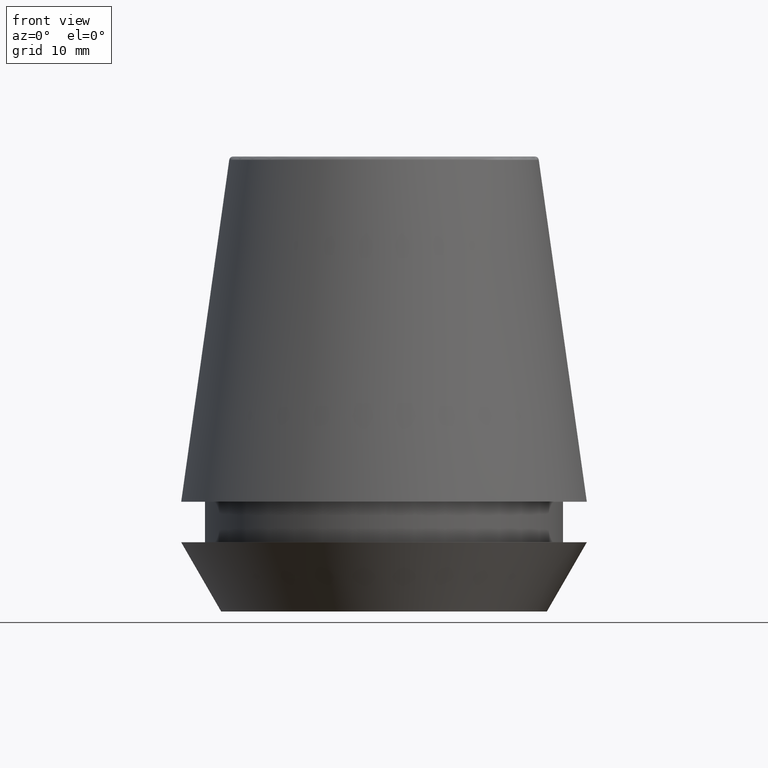
[diagram: clean part render]
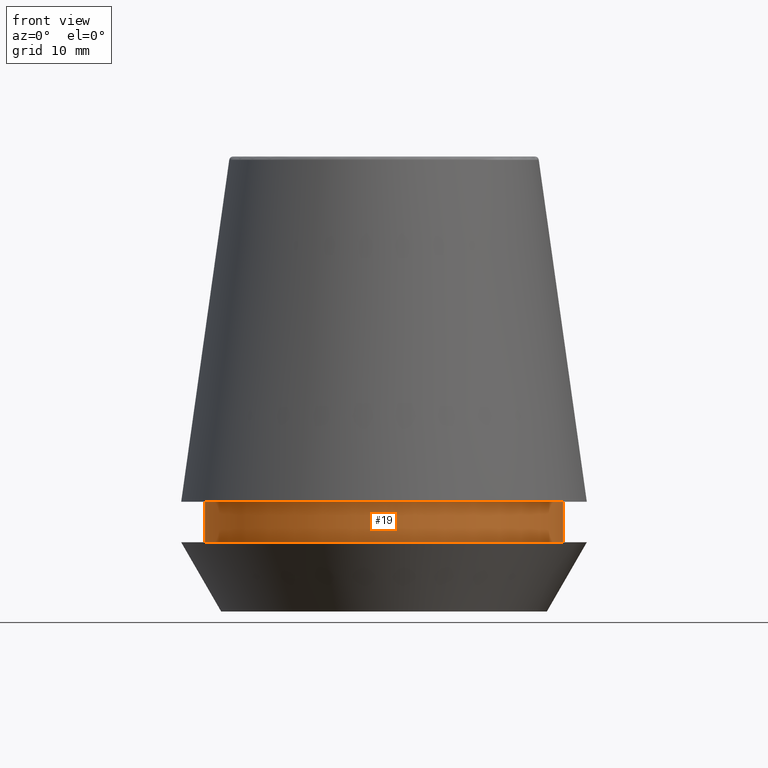
[diagram: same view with one face highlighted and labeled with its STEP entity id]
A machine part, front view. The second image highlights one B-rep face of the part: STEP entity #19.
In plain terms, the highlighted cylindrical surface (partial cylindrical patch) has radius 18.1 mm, axis along (-0, -0, 1).
Its self-contained STEP definition (entity closure, byte-faithful):
#4 = ORIENTED_EDGE ( 'NONE', *, *, #191, .T. ) ;
#6 = CARTESIAN_POINT ( 'NONE',  ( 0.0000000000000000000, 0.0000000000000000000, 11.09999999999999800 ) ) ;
#19 = ADVANCED_FACE ( 'NONE', ( #294 ), #316, .T. ) ;
#21 = CARTESIAN_POINT ( 'NONE',  ( 18.10000000000000500, 0.0000000000000000000, 11.09999999999999800 ) ) ;
#24 = AXIS2_PLACEMENT_3D ( 'NONE', #26, #101, #268 ) ;
#26 = CARTESIAN_POINT ( 'NONE',  ( 0.0000000000000000000, 0.0000000000000000000, 6.999999999999999100 ) ) ;
#32 = ORIENTED_EDGE ( 'NONE', *, *, #50, .F. ) ;
#35 = AXIS2_PLACEMENT_3D ( 'NONE', #207, #377, #256 ) ;
#50 = EDGE_CURVE ( 'NONE', #199, #272, #290, .T. ) ;
#53 = VERTEX_POINT ( 'NONE', #382 ) ;
#95 = CARTESIAN_POINT ( 'NONE',  ( -18.10000000000000500, 2.216610706456710000E-015, 11.09999999999999800 ) ) ;
#101 = DIRECTION ( 'NONE',  ( -0.0000000000000000000, -0.0000000000000000000, 1.000000000000000000 ) ) ;
#117 = DIRECTION ( 'NONE',  ( -0.0000000000000000000, -0.0000000000000000000, 1.000000000000000000 ) ) ;
#123 = CARTESIAN_POINT ( 'NONE',  ( 18.10000000000000500, 0.0000000000000000000, 46.00000000000000000 ) ) ;
#141 = CARTESIAN_POINT ( 'NONE',  ( -18.10000000000000100, 2.216610706456709600E-015, 6.999999999999999100 ) ) ;
#142 = EDGE_CURVE ( 'NONE', #53, #210, #355, .T. ) ;
#149 = DIRECTION ( 'NONE',  ( -0.0000000000000000000, -0.0000000000000000000, 1.000000000000000000 ) ) ;
#161 = DIRECTION ( 'NONE',  ( -0.0000000000000000000, -0.0000000000000000000, 1.000000000000000000 ) ) ;
#164 = CARTESIAN_POINT ( 'NONE',  ( -18.10000000000000500, 2.216610706456710000E-015, 46.00000000000000000 ) ) ;
#168 = AXIS2_PLACEMENT_3D ( 'NONE', #6, #161, #363 ) ;
#191 = EDGE_CURVE ( 'NONE', #199, #53, #333, .T. ) ;
#195 = ORIENTED_EDGE ( 'NONE', *, *, #357, .F. ) ;
#199 = VERTEX_POINT ( 'NONE', #141 ) ;
#207 = CARTESIAN_POINT ( 'NONE',  ( 0.0000000000000000000, 0.0000000000000000000, 46.00000000000000000 ) ) ;
#210 = VERTEX_POINT ( 'NONE', #21 ) ;
#243 = ORIENTED_EDGE ( 'NONE', *, *, #142, .T. ) ;
#256 = DIRECTION ( 'NONE',  ( 1.000000000000000000, 0.0000000000000000000, 0.0000000000000000000 ) ) ;
#257 = VECTOR ( 'NONE', #149, 1000.000000000000000 ) ;
#268 = DIRECTION ( 'NONE',  ( 1.000000000000000000, 0.0000000000000000000, 0.0000000000000000000 ) ) ;
#272 = VERTEX_POINT ( 'NONE', #95 ) ;
#281 = CIRCLE ( 'NONE', #168, 18.10000000000000500 ) ;
#290 = LINE ( 'NONE', #164, #257 ) ;
#294 = FACE_OUTER_BOUND ( 'NONE', #350, .T. ) ;
#316 = CYLINDRICAL_SURFACE ( 'NONE', #35, 18.10000000000000500 ) ;
#333 = CIRCLE ( 'NONE', #24, 18.10000000000000100 ) ;
#348 = VECTOR ( 'NONE', #117, 1000.000000000000000 ) ;
#350 = EDGE_LOOP ( 'NONE', ( #32, #4, #243, #195 ) ) ;
#355 = LINE ( 'NONE', #123, #348 ) ;
#357 = EDGE_CURVE ( 'NONE', #272, #210, #281, .T. ) ;
#363 = DIRECTION ( 'NONE',  ( 1.000000000000000000, 0.0000000000000000000, 0.0000000000000000000 ) ) ;
#377 = DIRECTION ( 'NONE',  ( -0.0000000000000000000, -0.0000000000000000000, 1.000000000000000000 ) ) ;
#382 = CARTESIAN_POINT ( 'NONE',  ( 18.10000000000000100, 0.0000000000000000000, 6.999999999999999100 ) ) ;